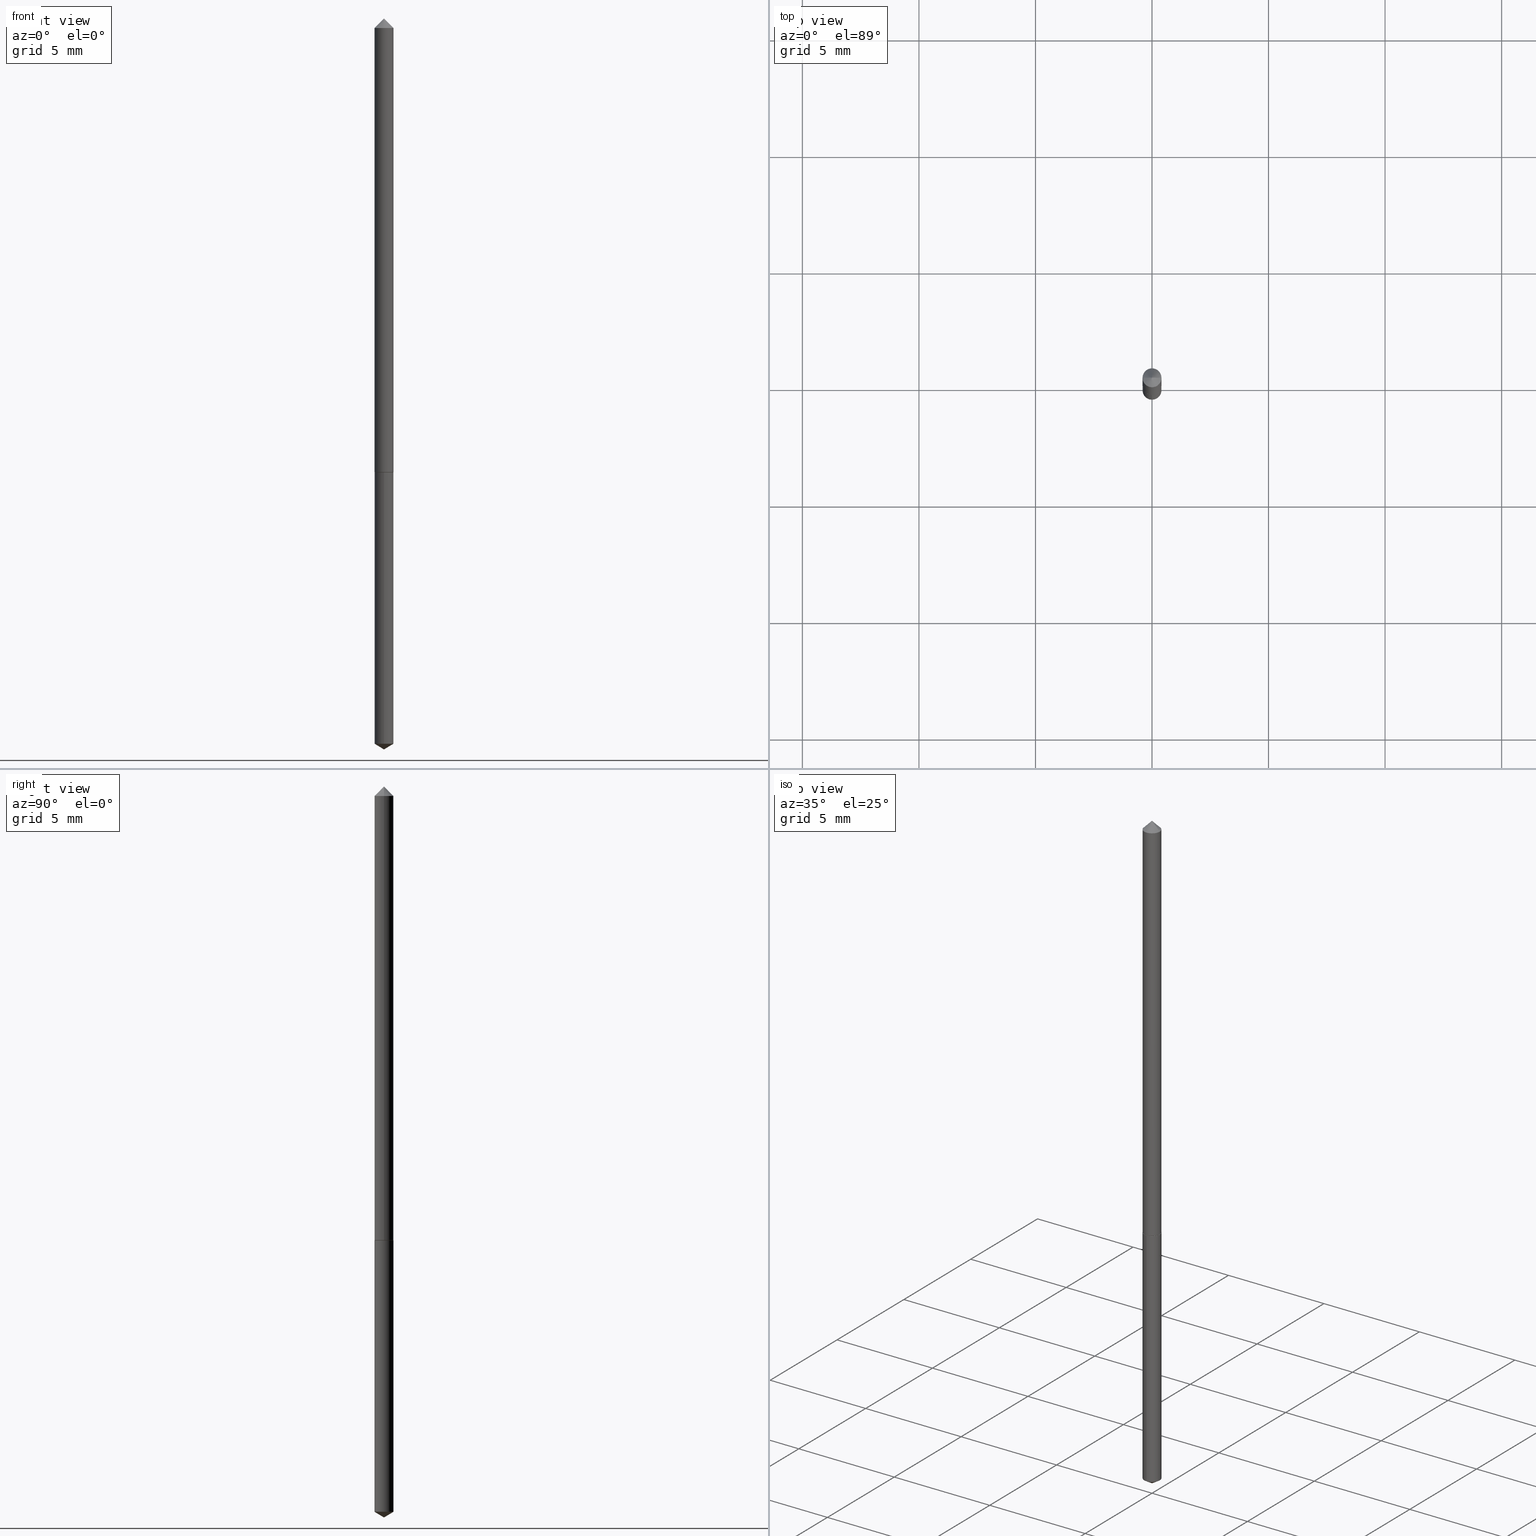
[diagram: canonical four-view strip — front | top / right | iso, engineering-drawing reading convention]
A machine part, canonical four-view strip (front | top / right | iso — engineering-drawing reading convention). The complete STEP part file that produces these views, byte-faithful:
ISO-10303-21;
HEADER;
FILE_DESCRIPTION (( 'STEP AP203' ),
    '1' );
FILE_NAME ('57091.STEP',
    '2024-04-22T22:00:18',
    ( '' ),
    ( '' ),
    'SwSTEP 2.0',
    'SolidWorks 2023',
    '' );
FILE_SCHEMA (( 'CONFIG_CONTROL_DESIGN' ));
ENDSEC;

DATA;
#1 = EDGE_CURVE ( 'NONE', #271, #68, #107, .T. ) ;
#2 = DIRECTION ( 'NONE',  ( 6.090539988449753981E-15, 0.8571673007021103352, 0.5150380749100573752 ) ) ;
#3 = AXIS2_PLACEMENT_3D ( 'NONE', #152, #133, #344 ) ;
#4 = EDGE_CURVE ( 'NONE', #143, #40, #61, .T. ) ;
#5 = CYLINDRICAL_SURFACE ( 'NONE', #163, 0.01600000000000000033 ) ;
#6 = APPROVAL_STATUS ( 'not_yet_approved' ) ;
#7 = CARTESIAN_POINT ( 'NONE',  ( 1.136868377216351373E-16, 0.01599999999999726988, -0.7820000000000000284 ) ) ;
#8 = APPROVAL_PERSON_ORGANIZATION ( #262, #326, #130 ) ;
#9 = ORIENTED_EDGE ( 'NONE', *, *, #75, .F. ) ;
#10 = EDGE_CURVE ( 'NONE', #23, #249, #36, .T. ) ;
#11 = DIRECTION ( 'NONE',  ( -0.7071067811865452413, 2.468850131082233000E-15, -0.7071067811865497932 ) ) ;
#12 = CARTESIAN_POINT ( 'NONE',  ( 3.056826799595309849E-29, -4.364364860128938226E-15, -1.250000000000000000 ) ) ;
#13 = AXIS2_PLACEMENT_3D ( 'NONE', #122, #291, #183 ) ;
#14 = CC_DESIGN_PERSON_AND_ORGANIZATION_ASSIGNMENT ( #31, #91, ( #272 ) ) ;
#15 = PRODUCT_RELATED_PRODUCT_CATEGORY ( 'detail', '', ( #272 ) ) ;
#16 = FACE_OUTER_BOUND ( 'NONE', #196, .T. ) ;
#17 = CALENDAR_DATE ( 2024, 22, 4 ) ;
#18 = ORIENTED_EDGE ( 'NONE', *, *, #351, .F. ) ;
#19 = CARTESIAN_POINT ( 'NONE',  ( 7.642090019328601786E-31, -1.091087918388490144E-16, -0.03125000000000020123 ) ) ;
#20 = AXIS2_PLACEMENT_3D ( 'NONE', #76, #189, #162 ) ;
#21 = EDGE_CURVE ( 'NONE', #250, #271, #111, .T. ) ;
#22 = DIRECTION ( 'NONE',  ( -6.982962677686266711E-15, -1.000000000000000000, 0.000000000000000000 ) ) ;
#23 = VERTEX_POINT ( 'NONE', #164 ) ;
#24 = DIRECTION ( 'NONE',  ( -0.7071067811865322517, 7.493145998870298940E-15, 0.7071067811865625607 ) ) ;
#25 = PERSON_AND_ORGANIZATION ( #327, #64 ) ;
#26 = CARTESIAN_POINT ( 'NONE',  ( 0.01600000000000009401, -2.840320069148899113E-15, -0.7814999999999999725 ) ) ;
#27 = PRODUCT_DEFINITION_FORMATION_WITH_SPECIFIED_SOURCE ( 'ANY', '', #272, .NOT_KNOWN. ) ;
#28 = EDGE_LOOP ( 'NONE', ( #184, #119, #279, #9 ) ) ;
#29 = DIRECTION ( 'NONE',  ( 1.000000000000000000, -6.982962677686265133E-15, 0.000000000000000000 ) ) ;
#30 = CC_DESIGN_DATE_AND_TIME_ASSIGNMENT ( #72, #294, ( #161 ) ) ;
#31 = PERSON_AND_ORGANIZATION ( #327, #64 ) ;
#32 = CARTESIAN_POINT ( 'NONE',  ( -9.322260426250388877E-28, 1.330939098457293836E-13, 38.12007874015748143 ) ) ;
#33 = ORIENTED_EDGE ( 'NONE', *, *, #4, .F. ) ;
#34 = COORDINATED_UNIVERSAL_TIME_OFFSET ( 5, 0, .BEHIND. ) ;
#35 = FACE_OUTER_BOUND ( 'NONE', #221, .T. ) ;
#36 = CIRCLE ( 'NONE', #298, 0.01600000000000000033 ) ;
#37 = APPROVAL_DATE_TIME ( #258, #73 ) ;
#38 = AXIS2_PLACEMENT_3D ( 'NONE', #32, #205, #263 ) ;
#39 = FACE_OUTER_BOUND ( 'NONE', #112, .T. ) ;
#40 = VERTEX_POINT ( 'NONE', #26 ) ;
#41 = DIRECTION ( 'NONE',  ( 1.000000000000000000, -6.982962677686261189E-15, 0.000000000000000000 ) ) ;
#42 = VERTEX_POINT ( 'NONE', #331 ) ;
#43 = APPROVAL_DATE_TIME ( #135, #159 ) ;
#44 = DIRECTION ( 'NONE',  ( 1.000000000000000000, -6.982962677686267499E-15, 4.876176775795936353E-29 ) ) ;
#45 = ORIENTED_EDGE ( 'NONE', *, *, #114, .T. ) ;
#46 = COORDINATED_UNIVERSAL_TIME_OFFSET ( 5, 0, .BEHIND. ) ;
#47 = LOCAL_TIME ( 18, 0, 18.00000000000000000, #313 ) ;
#48 = DIRECTION ( 'NONE',  ( -2.445468806185136597E-29, 3.491481338843145583E-15, 1.000000000000000000 ) ) ;
#49 = EDGE_LOOP ( 'NONE', ( #281, #98, #80 ) ) ;
#50 = ADVANCED_FACE ( 'NONE', ( #362 ), #307, .F. ) ;
#51 = CARTESIAN_POINT ( 'NONE',  ( 0.01600000000000009401, -2.840320069148899113E-15, -0.7814999999999999725 ) ) ;
#52 = CARTESIAN_POINT ( 'NONE',  ( 1.912356606436776888E-29, -2.730338406975340050E-15, -0.7820000000000000284 ) ) ;
#53 =( LENGTH_UNIT ( ) NAMED_UNIT ( * ) SI_UNIT ( $, .METRE. ) );
#54 = CLOSED_SHELL ( 'NONE', ( #138, #108, #175, #235, #208 ) ) ;
#55 = CARTESIAN_POINT ( 'NONE',  ( 1.912356606436776888E-29, -2.730338406975340050E-15, -0.7820000000000000284 ) ) ;
#56 = CC_DESIGN_APPROVAL ( #73, ( #283 ) ) ;
#57 = APPROVAL_PERSON_ORGANIZATION ( #321, #159, #212 ) ;
#58 = ADVANCED_BREP_SHAPE_REPRESENTATION ( '57091', ( #322, #87, #167 ), #253 ) ;
#59 = DIRECTION ( 'NONE',  ( 2.445468806185136597E-29, -3.491481338843145583E-15, -1.000000000000000000 ) ) ;
#60 = DATE_AND_TIME ( #86, #218 ) ;
#61 = LINE ( 'NONE', #51, #355 ) ;
#62 = ORIENTED_EDGE ( 'NONE', *, *, #75, .T. ) ;
#63 = CARTESIAN_POINT ( 'NONE',  ( 1.912356606436776888E-29, -2.730338406975340050E-15, -0.7820000000000000284 ) ) ;
#64 = ORGANIZATION ( 'UNSPECIFIED', 'UNSPECIFIED', '' ) ;
#65 =( NAMED_UNIT ( * ) SI_UNIT ( $, .STERADIAN. ) SOLID_ANGLE_UNIT ( ) );
#66 = DIRECTION ( 'NONE',  ( 1.000000000000000000, -6.982962677686261189E-15, 0.000000000000000000 ) ) ;
#67 = CYLINDRICAL_SURFACE ( 'NONE', #296, 0.01600000000000004891 ) ;
#68 = VERTEX_POINT ( 'NONE', #280 ) ;
#69 = CIRCLE ( 'NONE', #187, 0.01600000000000000033 ) ;
#70 = ORIENTED_EDGE ( 'NONE', *, *, #318, .T. ) ;
#71 = CALENDAR_DATE ( 2024, 22, 4 ) ;
#72 = DATE_AND_TIME ( #71, #47 ) ;
#73 = APPROVAL ( #310, 'UNSPECIFIED' ) ;
#74 = ORIENTED_EDGE ( 'NONE', *, *, #182, .T. ) ;
#75 = EDGE_CURVE ( 'NONE', #249, #23, #69, .T. ) ;
#76 = CARTESIAN_POINT ( 'NONE',  ( 7.642090019328601786E-31, -1.091087918388490144E-16, -0.03125000000000020123 ) ) ;
#77 = CONICAL_SURFACE ( 'NONE', #147, 0.01600000000000009401, 0.7853981633974269627 ) ;
#78 = DIRECTION ( 'NONE',  ( -6.982962677686266711E-15, -1.000000000000000000, 0.000000000000000000 ) ) ;
#79 = CARTESIAN_POINT ( 'NONE',  ( 0.01600000000000000380, -2.188767598031935372E-16, -0.03125000000000020123 ) ) ;
#80 = ORIENTED_EDGE ( 'NONE', *, *, #182, .F. ) ;
#81 = CARTESIAN_POINT ( 'NONE',  ( -0.01600000000000009401, -2.614905828584301627E-15, -0.7814999999999999725 ) ) ;
#82 = ORIENTED_EDGE ( 'NONE', *, *, #203, .T. ) ;
#83 = DIRECTION ( 'NONE',  ( -2.445498131459376730E-29, 3.491439343381342925E-15, 1.000000000000000000 ) ) ;
#84 = VECTOR ( 'NONE', #11, 39.37007874015748143 ) ;
#85 = ORIENTED_EDGE ( 'NONE', *, *, #1, .F. ) ;
#86 = CALENDAR_DATE ( 2024, 22, 4 ) ;
#87 = MANIFOLD_SOLID_BREP ( 'Body-Move/Copy2[2]', #134 ) ;
#88 = DIRECTION ( 'NONE',  ( 0.7071067811865322517, -2.468850131082098500E-15, 0.7071067811865625607 ) ) ;
#89 = CC_DESIGN_DATE_AND_TIME_ASSIGNMENT ( #95, #154, ( #283 ) ) ;
#90 = PERSON_AND_ORGANIZATION_ROLE ( 'classification_officer' ) ;
#91 = PERSON_AND_ORGANIZATION_ROLE ( 'design_owner' ) ;
#92 = LINE ( 'NONE', #7, #343 ) ;
#93 = APPLICATION_CONTEXT ( 'configuration controlled 3d designs of mechanical parts and assemblies' ) ;
#94 = DIRECTION ( 'NONE',  ( -2.445498131459376730E-29, 3.491439343381342925E-15, 1.000000000000000000 ) ) ;
#95 = DATE_AND_TIME ( #345, #193 ) ;
#96 = DIRECTION ( 'NONE',  ( -2.445468806185136597E-29, 3.491481338843145583E-15, 1.000000000000000000 ) ) ;
#97 = FACE_OUTER_BOUND ( 'NONE', #28, .T. ) ;
#98 = ORIENTED_EDGE ( 'NONE', *, *, #200, .T. ) ;
#99 = APPROVAL_PERSON_ORGANIZATION ( #202, #73, #179 ) ;
#100 = LOCAL_TIME ( 18, 0, 18.00000000000000000, #46 ) ;
#101 = DESIGN_CONTEXT ( 'detailed design', #93, 'design' ) ;
#102 = EDGE_LOOP ( 'NONE', ( #165, #45, #120, #246 ) ) ;
#103 = EDGE_CURVE ( 'NONE', #315, #335, #223, .T. ) ;
#104 = CARTESIAN_POINT ( 'NONE',  ( -0.01600000000000000380, 2.618611004131298166E-18, -0.03125000000000020123 ) ) ;
#105 = LINE ( 'NONE', #12, #300 ) ;
#106 = ADVANCED_FACE ( 'NONE', ( #113 ), #359, .T. ) ;
#107 = CIRCLE ( 'NONE', #153, 0.01600000000000000380 ) ;
#108 = ADVANCED_FACE ( 'NONE', ( #302 ), #299, .T. ) ;
#109 = VECTOR ( 'NONE', #180, 39.37007874015748143 ) ;
#110 = DIRECTION ( 'NONE',  ( -2.445498131459376730E-29, 3.491439343381342925E-15, 1.000000000000000000 ) ) ;
#111 = LINE ( 'NONE', #79, #306 ) ;
#112 = EDGE_LOOP ( 'NONE', ( #337, #323, #342, #33 ) ) ;
#113 = FACE_OUTER_BOUND ( 'NONE', #285, .T. ) ;
#114 = EDGE_CURVE ( 'NONE', #315, #143, #238, .T. ) ;
#115 = ORIENTED_EDGE ( 'NONE', *, *, #114, .F. ) ;
#116 = DIRECTION ( 'NONE',  ( -2.445468806185136877E-29, 3.491481338843145188E-15, 1.000000000000000000 ) ) ;
#117 = CONICAL_SURFACE ( 'NONE', #192, 0.01600000000000009401, 0.7853981633974269627 ) ;
#118 = SECURITY_CLASSIFICATION_LEVEL ( 'unclassified' ) ;
#119 = ORIENTED_EDGE ( 'NONE', *, *, #220, .T. ) ;
#120 = ORIENTED_EDGE ( 'NONE', *, *, #4, .T. ) ;
#121 = PERSON_AND_ORGANIZATION_ROLE ( 'creator' ) ;
#122 = CARTESIAN_POINT ( 'NONE',  ( 3.033339275622173762E-29, -4.330766125195227959E-15, -1.240386230095559039 ) ) ;
#123 = VERTEX_POINT ( 'NONE', #222 ) ;
#124 =( NAMED_UNIT ( * ) PLANE_ANGLE_UNIT ( ) SI_UNIT ( $, .RADIAN. ) );
#125 = CARTESIAN_POINT ( 'NONE',  ( 7.642090019328601786E-31, -1.091087918388490144E-16, -0.03125000000000020123 ) ) ;
#126 = CIRCLE ( 'NONE', #316, 0.01600000000000000380 ) ;
#127 = PERSON_AND_ORGANIZATION ( #327, #64 ) ;
#128 = DIRECTION ( 'NONE',  ( -2.445468806185136597E-29, 3.491481338843145583E-15, 1.000000000000000000 ) ) ;
#129 = ORIENTED_EDGE ( 'NONE', *, *, #309, .T. ) ;
#130 = APPROVAL_ROLE ( '' ) ;
#131 = FACE_OUTER_BOUND ( 'NONE', #102, .T. ) ;
#132 = CARTESIAN_POINT ( 'NONE',  ( 3.056872664324221123E-29, -4.364299179226678558E-15, -1.250000000000000000 ) ) ;
#133 = DIRECTION ( 'NONE',  ( 2.445498131459376170E-29, -3.491439343381342925E-15, -1.000000000000000000 ) ) ;
#134 = CLOSED_SHELL ( 'NONE', ( #265, #149, #186, #50, #230, #275, #106 ) ) ;
#135 = DATE_AND_TIME ( #17, #100 ) ;
#136 = DIRECTION ( 'NONE',  ( -5.985567269335916825E-15, -0.8571673007021067825, 0.5150380749100633704 ) ) ;
#137 = VECTOR ( 'NONE', #2, 39.37007874015748143 ) ;
#138 = ADVANCED_FACE ( 'NONE', ( #16 ), #219, .T. ) ;
#139 = CARTESIAN_POINT ( 'NONE',  ( 7.642090019328601786E-31, -1.091087918388490144E-16, -0.03125000000000020123 ) ) ;
#140 = EDGE_CURVE ( 'NONE', #40, #271, #330, .T. ) ;
#141 = AXIS2_PLACEMENT_3D ( 'NONE', #174, #257, #237 ) ;
#142 = EDGE_LOOP ( 'NONE', ( #304, #62 ) ) ;
#143 = VERTEX_POINT ( 'NONE', #284 ) ;
#144 = EDGE_CURVE ( 'NONE', #335, #68, #254, .T. ) ;
#145 = CARTESIAN_POINT ( 'NONE',  ( -9.322260426250388877E-28, 1.330939098457293836E-13, 38.12007874015748143 ) ) ;
#146 = DIRECTION ( 'NONE',  ( 1.000000000000000000, -6.982962677686265922E-15, 4.876176775795935793E-29 ) ) ;
#147 = AXIS2_PLACEMENT_3D ( 'NONE', #226, #128, #41 ) ;
#148 = CARTESIAN_POINT ( 'NONE',  ( 1.136868377216464526E-16, 0.01599999999999726988, -0.7820000000000000284 ) ) ;
#149 = ADVANCED_FACE ( 'NONE', ( #35 ), #67, .T. ) ;
#150 = LENGTH_MEASURE_WITH_UNIT ( LENGTH_MEASURE( 0.02539999999999999897 ), #53 );
#151 = DIRECTION ( 'NONE',  ( -2.445468806185136597E-29, 3.491481338843145583E-15, 1.000000000000000000 ) ) ;
#152 = CARTESIAN_POINT ( 'NONE',  ( 1.912356606436776888E-29, -2.730338406975340050E-15, -0.7820000000000000284 ) ) ;
#153 = AXIS2_PLACEMENT_3D ( 'NONE', #19, #303, #358 ) ;
#154 = DATE_TIME_ROLE ( 'creation_date' ) ;
#155 = CARTESIAN_POINT ( 'NONE',  ( 3.056873066503754594E-29, -4.364299179226679347E-15, -1.250000000000000000 ) ) ;
#156 = ORIENTED_EDGE ( 'NONE', *, *, #245, .F. ) ;
#157 = CARTESIAN_POINT ( 'NONE',  ( 1.911133872033684367E-29, -2.728592666305918152E-15, -0.7814999999999999725 ) ) ;
#158 = EDGE_LOOP ( 'NONE', ( #227, #308, #297, #166 ) ) ;
#159 = APPROVAL ( #274, 'UNSPECIFIED' ) ;
#160 = CARTESIAN_POINT ( 'NONE',  ( 1.911133872033684367E-29, -2.728592666305918152E-15, -0.7814999999999999725 ) ) ;
#161 = SECURITY_CLASSIFICATION ( '', '', #118 ) ;
#162 = DIRECTION ( 'NONE',  ( -1.000000000000000000, 6.982962677686268288E-15, 0.000000000000000000 ) ) ;
#163 = AXIS2_PLACEMENT_3D ( 'NONE', #63, #94, #346 ) ;
#164 = CARTESIAN_POINT ( 'NONE',  ( -1.117274028429611414E-16, -0.01600000000000273079, -0.7820000000000000284 ) ) ;
#165 = ORIENTED_EDGE ( 'NONE', *, *, #103, .F. ) ;
#166 = ORIENTED_EDGE ( 'NONE', *, *, #203, .F. ) ;
#167 = AXIS2_PLACEMENT_3D ( 'NONE', #207, #228, #340 ) ;
#168 = ORIENTED_EDGE ( 'NONE', *, *, #351, .T. ) ;
#169 = EDGE_CURVE ( 'NONE', #42, #249, #92, .T. ) ;
#170 = CARTESIAN_POINT ( 'NONE',  ( 0.01600000000000004891, -1.117274028429806164E-16, 7.801882841273521721E-31 ) ) ;
#171 = APPROVAL_DATE_TIME ( #60, #326 ) ;
#172 = DIRECTION ( 'NONE',  ( -2.445498131459376730E-29, 3.491439343381342925E-15, 1.000000000000000000 ) ) ;
#173 = PERSON_AND_ORGANIZATION ( #327, #64 ) ;
#174 = CARTESIAN_POINT ( 'NONE',  ( 3.033339275622173762E-29, -4.330766125195227959E-15, -1.240386230095559039 ) ) ;
#175 = ADVANCED_FACE ( 'NONE', ( #289 ), #260, .T. ) ;
#176 = DIRECTION ( 'NONE',  ( -2.445468806185136597E-29, 3.491481338843145583E-15, 1.000000000000000000 ) ) ;
#177 = APPLICATION_PROTOCOL_DEFINITION ( 'international standard', 'config_control_design', 1994, #93 ) ;
#178 = PLANE ( 'NONE',  #3 ) ;
#179 = APPROVAL_ROLE ( '' ) ;
#180 = DIRECTION ( 'NONE',  ( -2.445468806185136877E-29, 3.491481338843145188E-15, 1.000000000000000000 ) ) ;
#181 = CIRCLE ( 'NONE', #286, 0.01550000000000007969 ) ;
#182 = EDGE_CURVE ( 'NONE', #123, #42, #292, .T. ) ;
#183 = DIRECTION ( 'NONE',  ( -6.982962677686266711E-15, -1.000000000000000000, 0.000000000000000000 ) ) ;
#184 = ORIENTED_EDGE ( 'NONE', *, *, #169, .F. ) ;
#185 = CARTESIAN_POINT ( 'NONE',  ( 0.01600000000000000380, -2.208361946818292980E-16, -0.03125000000000020123 ) ) ;
#186 = ADVANCED_FACE ( 'NONE', ( #39 ), #117, .T. ) ;
#187 = AXIS2_PLACEMENT_3D ( 'NONE', #357, #276, #78 ) ;
#188 = AXIS2_PLACEMENT_3D ( 'NONE', #333, #83, #311 ) ;
#189 = DIRECTION ( 'NONE',  ( 2.445468806185136597E-29, -3.491481338843145583E-15, -1.000000000000000000 ) ) ;
#190 = PRODUCT_DEFINITION_SHAPE ( 'NONE', 'NONE',  #283 ) ;
#191 = AXIS2_PLACEMENT_3D ( 'NONE', #145, #110, #356 ) ;
#192 = AXIS2_PLACEMENT_3D ( 'NONE', #261, #151, #66 ) ;
#193 = LOCAL_TIME ( 18, 0, 18.00000000000000000, #233 ) ;
#194 = CC_DESIGN_SECURITY_CLASSIFICATION ( #161, ( #27 ) ) ;
#195 = APPLICATION_CONTEXT ( 'configuration controlled 3d designs of mechanical parts and assemblies' ) ;
#196 = EDGE_LOOP ( 'NONE', ( #74, #350, #251, #225 ) ) ;
#197 = DIRECTION ( 'NONE',  ( -1.000000000000000000, 6.982962677686268288E-15, 0.000000000000000000 ) ) ;
#198 = CARTESIAN_POINT ( 'NONE',  ( 1.912356606436776888E-29, -2.730338406975340050E-15, -0.7820000000000000284 ) ) ;
#199 = DIRECTION ( 'NONE',  ( -2.445468806185136597E-29, 3.491481338843145583E-15, 1.000000000000000000 ) ) ;
#200 = EDGE_CURVE ( 'NONE', #363, #42, #255, .T. ) ;
#201 = CARTESIAN_POINT ( 'NONE',  ( 1.912356606436776888E-29, -2.730338406975340050E-15, -0.7820000000000000284 ) ) ;
#202 = PERSON_AND_ORGANIZATION ( #327, #64 ) ;
#203 = EDGE_CURVE ( 'NONE', #68, #271, #126, .T. ) ;
#204 = AXIS2_PLACEMENT_3D ( 'NONE', #160, #240, #214 ) ;
#205 = DIRECTION ( 'NONE',  ( -2.445498131459376730E-29, 3.491439343381342925E-15, 1.000000000000000000 ) ) ;
#206 = EDGE_LOOP ( 'NONE', ( #18, #312, #247 ) ) ;
#207 = CARTESIAN_POINT ( 'NONE',  ( 0.000000000000000000, 0.000000000000000000, 0.000000000000000000 ) ) ;
#208 = ADVANCED_FACE ( 'NONE', ( #234 ), #178, .F. ) ;
#209 = VECTOR ( 'NONE', #116, 39.37007874015748143 ) ;
#210 = ORIENTED_EDGE ( 'NONE', *, *, #144, .T. ) ;
#211 = CYLINDRICAL_SURFACE ( 'NONE', #231, 0.01600000000000004891 ) ;
#212 = APPROVAL_ROLE ( '' ) ;
#213 = UNCERTAINTY_MEASURE_WITH_UNIT (LENGTH_MEASURE( 1.000000000000000082E-05 ), #256, 'distance_accuracy_value', 'NONE');
#214 = DIRECTION ( 'NONE',  ( 1.000000000000000000, -6.982962677686261189E-15, 0.000000000000000000 ) ) ;
#215 = DIMENSIONAL_EXPONENTS ( 1.000000000000000000, 0.000000000000000000, 0.000000000000000000, 0.000000000000000000, 0.000000000000000000, 0.000000000000000000, 0.000000000000000000 ) ;
#216 = CARTESIAN_POINT ( 'NONE',  ( 0.000000000000000000, 0.000000000000000000, 0.000000000000000000 ) ) ;
#217 = CC_DESIGN_PERSON_AND_ORGANIZATION_ASSIGNMENT ( #127, #121, ( #283 ) ) ;
#218 = LOCAL_TIME ( 18, 0, 18.00000000000000000, #236 ) ;
#219 = CYLINDRICAL_SURFACE ( 'NONE', #188, 0.01600000000000000033 ) ;
#220 = EDGE_CURVE ( 'NONE', #42, #123, #239, .T. ) ;
#221 = EDGE_LOOP ( 'NONE', ( #129, #210, #85, #332 ) ) ;
#222 = CARTESIAN_POINT ( 'NONE',  ( -1.117274028429499248E-16, -0.01600000000000433020, -1.240386230095559039 ) ) ;
#223 = LINE ( 'NONE', #81, #328 ) ;
#224 = DIRECTION ( 'NONE',  ( 1.000000000000000000, -6.982962677686265133E-15, 0.000000000000000000 ) ) ;
#225 = ORIENTED_EDGE ( 'NONE', *, *, #334, .F. ) ;
#226 = CARTESIAN_POINT ( 'NONE',  ( 1.911133872033684367E-29, -2.728592666305918152E-15, -0.7814999999999999725 ) ) ;
#227 = ORIENTED_EDGE ( 'NONE', *, *, #144, .F. ) ;
#228 = DIRECTION ( 'NONE',  ( 0.000000000000000000, 0.000000000000000000, 1.000000000000000000 ) ) ;
#229 = AXIS2_PLACEMENT_3D ( 'NONE', #55, #199, #224 ) ;
#230 = ADVANCED_FACE ( 'NONE', ( #131 ), #77, .T. ) ;
#231 = AXIS2_PLACEMENT_3D ( 'NONE', #216, #48, #44 ) ;
#232 = DIRECTION ( 'NONE',  ( 1.000000000000000000, -6.982962677686266711E-15, 0.000000000000000000 ) ) ;
#233 = COORDINATED_UNIVERSAL_TIME_OFFSET ( 5, 0, .BEHIND. ) ;
#234 = FACE_OUTER_BOUND ( 'NONE', #142, .T. ) ;
#235 = ADVANCED_FACE ( 'NONE', ( #97 ), #5, .T. ) ;
#236 = COORDINATED_UNIVERSAL_TIME_OFFSET ( 5, 0, .BEHIND. ) ;
#237 = DIRECTION ( 'NONE',  ( -6.982962677686266711E-15, -1.000000000000000000, 0.000000000000000000 ) ) ;
#238 = CIRCLE ( 'NONE', #229, 0.01550000000000007969 ) ;
#239 = CIRCLE ( 'NONE', #13, 0.01600000000000000033 ) ;
#240 = DIRECTION ( 'NONE',  ( -2.445468806185136597E-29, 3.491481338843145583E-15, 1.000000000000000000 ) ) ;
#241 = LINE ( 'NONE', #352, #329 ) ;
#242 = EDGE_LOOP ( 'NONE', ( #360, #70, #305 ) ) ;
#243 = DIRECTION ( 'NONE',  ( -2.445498131459376450E-29, 3.491439343381342925E-15, 1.000000000000000000 ) ) ;
#244 = EDGE_CURVE ( 'NONE', #335, #40, #353, .T. ) ;
#245 = EDGE_CURVE ( 'NONE', #143, #315, #181, .T. ) ;
#246 = ORIENTED_EDGE ( 'NONE', *, *, #244, .F. ) ;
#247 = ORIENTED_EDGE ( 'NONE', *, *, #1, .T. ) ;
#248 = DIRECTION ( 'NONE',  ( -2.438088387897960049E-29, 3.491481338843145188E-15, 1.000000000000000000 ) ) ;
#249 = VERTEX_POINT ( 'NONE', #148 ) ;
#250 = VERTEX_POINT ( 'NONE', #364 ) ;
#251 = ORIENTED_EDGE ( 'NONE', *, *, #10, .F. ) ;
#252 = PERSON_AND_ORGANIZATION_ROLE ( 'design_supplier' ) ;
#253 =( GEOMETRIC_REPRESENTATION_CONTEXT ( 3 ) GLOBAL_UNCERTAINTY_ASSIGNED_CONTEXT ( ( #213 ) ) GLOBAL_UNIT_ASSIGNED_CONTEXT ( ( #256, #124, #65 ) ) REPRESENTATION_CONTEXT ( 'NONE', 'WORKASPACE' ) );
#254 = LINE ( 'NONE', #293, #109 ) ;
#255 = LINE ( 'NONE', #155, #137 ) ;
#256 =( CONVERSION_BASED_UNIT ( 'INCH', #150 ) LENGTH_UNIT ( ) NAMED_UNIT ( #215 ) );
#257 = DIRECTION ( 'NONE',  ( -2.445498131459376730E-29, 3.491439343381342925E-15, 1.000000000000000000 ) ) ;
#258 = DATE_AND_TIME ( #288, #349 ) ;
#259 = CC_DESIGN_PERSON_AND_ORGANIZATION_ASSIGNMENT ( #173, #282, ( #27 ) ) ;
#260 = CONICAL_SURFACE ( 'NONE', #38, 65.52281426576735157, 1.029744258676647206 ) ;
#261 = CARTESIAN_POINT ( 'NONE',  ( 1.911133872033684367E-29, -2.728592666305918152E-15, -0.7814999999999999725 ) ) ;
#262 = PERSON_AND_ORGANIZATION ( #327, #64 ) ;
#263 = DIRECTION ( 'NONE',  ( -6.982962677686266711E-15, -1.000000000000000000, 3.468864327941651407E-15 ) ) ;
#264 = ORIENTED_EDGE ( 'NONE', *, *, #21, .F. ) ;
#265 = ADVANCED_FACE ( 'NONE', ( #341 ), #361, .T. ) ;
#266 = AXIS2_PLACEMENT_3D ( 'NONE', #52, #248, #146 ) ;
#267 = CC_DESIGN_APPROVAL ( #326, ( #27 ) ) ;
#268 = LINE ( 'NONE', #104, #84 ) ;
#269 = CARTESIAN_POINT ( 'NONE',  ( -0.01550000000000007969, -2.617555055758412828E-15, -0.7820000000000000284 ) ) ;
#270 = FACE_OUTER_BOUND ( 'NONE', #158, .T. ) ;
#271 = VERTEX_POINT ( 'NONE', #185 ) ;
#272 = PRODUCT ( '57091', '57091', '', ( #290 ) ) ;
#273 = CARTESIAN_POINT ( 'NONE',  ( -0.01600000000000009401, -2.614905828584301627E-15, -0.7814999999999999725 ) ) ;
#274 = APPROVAL_STATUS ( 'not_yet_approved' ) ;
#275 = ADVANCED_FACE ( 'NONE', ( #270 ), #211, .T. ) ;
#276 = DIRECTION ( 'NONE',  ( -2.445498131459376730E-29, 3.491439343381342925E-15, 1.000000000000000000 ) ) ;
#277 = CIRCLE ( 'NONE', #204, 0.01600000000000009401 ) ;
#278 = DIRECTION ( 'NONE',  ( 0.7071067811865452413, -7.319954787623248157E-15, -0.7071067811865497932 ) ) ;
#279 = ORIENTED_EDGE ( 'NONE', *, *, #334, .T. ) ;
#280 = CARTESIAN_POINT ( 'NONE',  ( -0.01600000000000000380, -1.305163891350765523E-15, -0.03125000000000020123 ) ) ;
#281 = ORIENTED_EDGE ( 'NONE', *, *, #318, .F. ) ;
#282 = PERSON_AND_ORGANIZATION_ROLE ( 'creator' ) ;
#283 = PRODUCT_DEFINITION ( 'UNKNOWN', '', #27, #101 ) ;
#284 = CARTESIAN_POINT ( 'NONE',  ( 0.01550000000000007969, -2.838574328479477610E-15, -0.7820000000000000284 ) ) ;
#285 = EDGE_LOOP ( 'NONE', ( #264, #168, #82 ) ) ;
#286 = AXIS2_PLACEMENT_3D ( 'NONE', #201, #287, #29 ) ;
#287 = DIRECTION ( 'NONE',  ( -2.445468806185136597E-29, 3.491481338843145583E-15, 1.000000000000000000 ) ) ;
#288 = CALENDAR_DATE ( 2024, 22, 4 ) ;
#289 = FACE_OUTER_BOUND ( 'NONE', #242, .T. ) ;
#290 = MECHANICAL_CONTEXT ( 'NONE', #195, 'mechanical' ) ;
#291 = DIRECTION ( 'NONE',  ( -2.445498131459376730E-29, 3.491439343381342925E-15, 1.000000000000000000 ) ) ;
#292 = CIRCLE ( 'NONE', #141, 0.01600000000000000033 ) ;
#293 = CARTESIAN_POINT ( 'NONE',  ( -0.01600000000000004891, 1.136868377216163772E-16, -7.870296144407873858E-31 ) ) ;
#294 = DATE_TIME_ROLE ( 'classification_date' ) ;
#295 = CC_DESIGN_PERSON_AND_ORGANIZATION_ASSIGNMENT ( #338, #90, ( #161 ) ) ;
#296 = AXIS2_PLACEMENT_3D ( 'NONE', #317, #339, #314 ) ;
#297 = ORIENTED_EDGE ( 'NONE', *, *, #140, .T. ) ;
#298 = AXIS2_PLACEMENT_3D ( 'NONE', #198, #172, #22 ) ;
#299 = CONICAL_SURFACE ( 'NONE', #191, 65.52281426576735157, 1.029744258676647206 ) ;
#300 = VECTOR ( 'NONE', #136, 39.37007874015748143 ) ;
#301 = CC_DESIGN_APPROVAL ( #159, ( #161 ) ) ;
#302 = FACE_OUTER_BOUND ( 'NONE', #49, .T. ) ;
#303 = DIRECTION ( 'NONE',  ( -2.445468806185136597E-29, 3.491481338843145583E-15, 1.000000000000000000 ) ) ;
#304 = ORIENTED_EDGE ( 'NONE', *, *, #10, .T. ) ;
#305 = ORIENTED_EDGE ( 'NONE', *, *, #220, .F. ) ;
#306 = VECTOR ( 'NONE', #278, 39.37007874015748143 ) ;
#307 = PLANE ( 'NONE',  #266 ) ;
#308 = ORIENTED_EDGE ( 'NONE', *, *, #244, .T. ) ;
#309 = EDGE_CURVE ( 'NONE', #40, #335, #277, .T. ) ;
#310 = APPROVAL_STATUS ( 'not_yet_approved' ) ;
#311 = DIRECTION ( 'NONE',  ( -6.982962677686266711E-15, -1.000000000000000000, 0.000000000000000000 ) ) ;
#312 = ORIENTED_EDGE ( 'NONE', *, *, #21, .T. ) ;
#313 = COORDINATED_UNIVERSAL_TIME_OFFSET ( 5, 0, .BEHIND. ) ;
#314 = DIRECTION ( 'NONE',  ( 1.000000000000000000, -6.982962677686267499E-15, 4.876176775795936353E-29 ) ) ;
#315 = VERTEX_POINT ( 'NONE', #269 ) ;
#316 = AXIS2_PLACEMENT_3D ( 'NONE', #125, #176, #232 ) ;
#317 = CARTESIAN_POINT ( 'NONE',  ( 0.000000000000000000, 0.000000000000000000, 0.000000000000000000 ) ) ;
#318 = EDGE_CURVE ( 'NONE', #363, #123, #105, .T. ) ;
#319 = APPLICATION_PROTOCOL_DEFINITION ( 'international standard', 'config_control_design', 1994, #195 ) ;
#320 = DIRECTION ( 'NONE',  ( 1.000000000000000000, -6.982962677686261189E-15, 0.000000000000000000 ) ) ;
#321 = PERSON_AND_ORGANIZATION ( #327, #64 ) ;
#322 = MANIFOLD_SOLID_BREP ( 'Body-Move/Copy2[1]', #54 ) ;
#323 = ORIENTED_EDGE ( 'NONE', *, *, #103, .T. ) ;
#324 = AXIS2_PLACEMENT_3D ( 'NONE', #139, #59, #197 ) ;
#325 = AXIS2_PLACEMENT_3D ( 'NONE', #157, #96, #320 ) ;
#326 = APPROVAL ( #6, 'UNSPECIFIED' ) ;
#327 = PERSON ( 'UNSPECIFIED', 'UNSPECIFIED', 'UNSPECIFIED', ('UNSPECIFIED'), ('UNSPECIFIED'), ('UNSPECIFIED') ) ;
#328 = VECTOR ( 'NONE', #24, 39.37007874015748854 ) ;
#329 = VECTOR ( 'NONE', #243, 39.37007874015748143 ) ;
#330 = LINE ( 'NONE', #170, #209 ) ;
#331 = CARTESIAN_POINT ( 'NONE',  ( 1.136868377216463539E-16, 0.01599999999999566699, -1.240386230095559039 ) ) ;
#332 = ORIENTED_EDGE ( 'NONE', *, *, #140, .F. ) ;
#333 = CARTESIAN_POINT ( 'NONE',  ( 1.912356606436776888E-29, -2.730338406975340050E-15, -0.7820000000000000284 ) ) ;
#334 = EDGE_CURVE ( 'NONE', #123, #23, #241, .T. ) ;
#335 = VERTEX_POINT ( 'NONE', #273 ) ;
#336 = EDGE_LOOP ( 'NONE', ( #156, #115 ) ) ;
#337 = ORIENTED_EDGE ( 'NONE', *, *, #245, .T. ) ;
#338 = PERSON_AND_ORGANIZATION ( #327, #64 ) ;
#339 = DIRECTION ( 'NONE',  ( -2.445468806185136597E-29, 3.491481338843145583E-15, 1.000000000000000000 ) ) ;
#340 = DIRECTION ( 'NONE',  ( 1.000000000000000000, 0.000000000000000000, 0.000000000000000000 ) ) ;
#341 = FACE_OUTER_BOUND ( 'NONE', #206, .T. ) ;
#342 = ORIENTED_EDGE ( 'NONE', *, *, #309, .F. ) ;
#343 = VECTOR ( 'NONE', #347, 39.37007874015748143 ) ;
#344 = DIRECTION ( 'NONE',  ( 6.982962677686265922E-15, 1.000000000000000000, -3.491439343381342925E-15 ) ) ;
#345 = CALENDAR_DATE ( 2024, 22, 4 ) ;
#346 = DIRECTION ( 'NONE',  ( -6.982962677686266711E-15, -1.000000000000000000, 0.000000000000000000 ) ) ;
#347 = DIRECTION ( 'NONE',  ( -2.445498131459376450E-29, 3.491439343381342925E-15, 1.000000000000000000 ) ) ;
#348 = SHAPE_DEFINITION_REPRESENTATION ( #190, #58 ) ;
#349 = LOCAL_TIME ( 18, 0, 18.00000000000000000, #34 ) ;
#350 = ORIENTED_EDGE ( 'NONE', *, *, #169, .T. ) ;
#351 = EDGE_CURVE ( 'NONE', #250, #68, #268, .T. ) ;
#352 = CARTESIAN_POINT ( 'NONE',  ( -1.117274028429611414E-16, -0.01600000000000273079, -0.7820000000000000284 ) ) ;
#353 = CIRCLE ( 'NONE', #325, 0.01600000000000009401 ) ;
#354 = CC_DESIGN_PERSON_AND_ORGANIZATION_ASSIGNMENT ( #25, #252, ( #27 ) ) ;
#355 = VECTOR ( 'NONE', #88, 39.37007874015748854 ) ;
#356 = DIRECTION ( 'NONE',  ( -6.982962677686266711E-15, -1.000000000000000000, 3.468864327941651407E-15 ) ) ;
#357 = CARTESIAN_POINT ( 'NONE',  ( 1.912356606436776888E-29, -2.730338406975340050E-15, -0.7820000000000000284 ) ) ;
#358 = DIRECTION ( 'NONE',  ( 1.000000000000000000, -6.982962677686266711E-15, 0.000000000000000000 ) ) ;
#359 = CONICAL_SURFACE ( 'NONE', #324, 0.01600000000000000380, 0.7853981633974450594 ) ;
#360 = ORIENTED_EDGE ( 'NONE', *, *, #200, .F. ) ;
#361 = CONICAL_SURFACE ( 'NONE', #20, 0.01600000000000000380, 0.7853981633974450594 ) ;
#362 = FACE_OUTER_BOUND ( 'NONE', #336, .T. ) ;
#363 = VERTEX_POINT ( 'NONE', #132 ) ;
#364 = CARTESIAN_POINT ( 'NONE',  ( 3.766598508691868103E-31, -5.271152635609575838E-17, -0.01525000000000009681 ) ) ;
ENDSEC;
END-ISO-10303-21;
